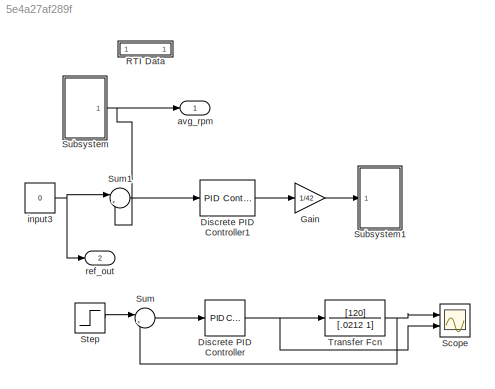
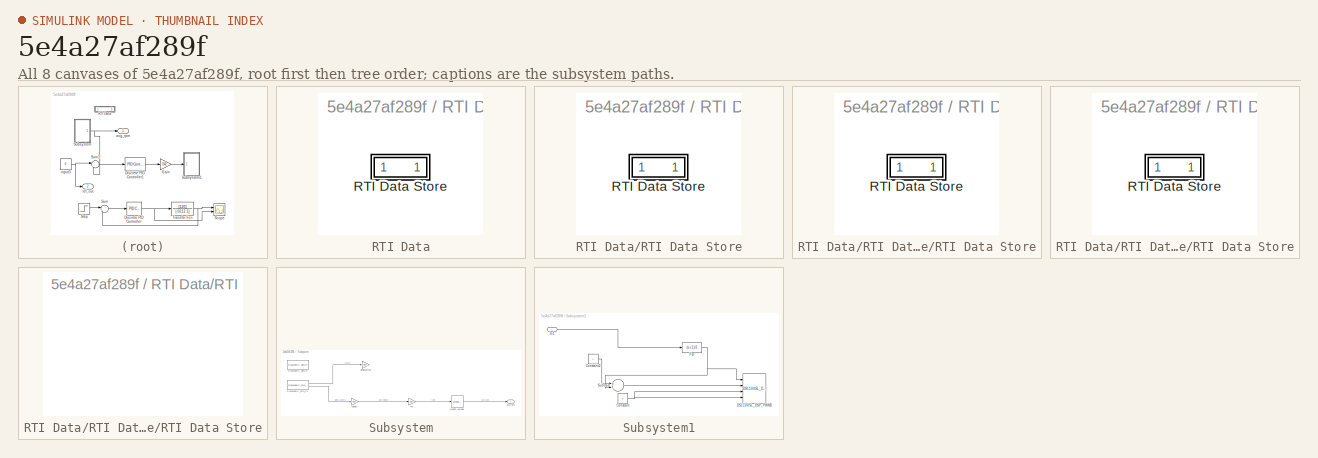
[diagram: thumbnail index - all 8 canvases of the model, root first then tree order]
MODEL slx_5e4a27af289f
KIND model
CONFIG AbsTol = auto
CONFIG EnableMultiTasking = off
CONFIG FixedStep = 0.0001
CONFIG MaxStep = auto
CONFIG MinStep = auto
CONFIG PostLoadFcn = , if any(exist('dsrtsu_mdlpostloadfcn', 'file') == [2, 3, 6]), try dsrtsu_mdlpostloadfcn('Execute', bdroot); catch fprintf('Error in PostLoadFcn (dsrtsu_mdlpostloadfcn) for model "%s":\n %s\n', bdroot, lasterr); end, end, \n
CONFIG RelTol = 1e-3
CONFIG SampleTimeConstraint = Unconstrained
CONFIG Solver = ode1
CONFIG SolverName = ode1
CONFIG StartTime = 0.0
CONFIG StopTime = inf
BLOCK [Reference] Discrete PID Controller  REF=simulink/Continuous/PID Controller
  Commented = on
  Ports = [1, 1]
  SourceBlock = simulink/Continuous/PID Controller
  SourceProductBaseCode = SL
  SourceProductName = Simulink
  SourceType = PID 1dof
BLOCK [Reference] Discrete PID Controller1  REF=simulink/Continuous/PID Controller
  Ports = [1, 1]
  SourceBlock = simulink/Continuous/PID Controller
  SourceProductBaseCode = SL
  SourceProductName = Simulink
  SourceType = PID 1dof
BLOCK [Gain] Gain
  Gain = 1/42
  OutDataTypeStr = Inherit: Inherit via internal rule
  ParamDataTypeStr = Inherit: Inherit via internal rule
  SaturateOnIntegerOverflow = off
BLOCK [SubSystem] RTI Data
  CopyFcn = if exist('rtidc'), try,  rtidc('DataHostBlockClbCopy', gcbh); catch, disp(['Warning: ''CopyFcn'' for RTI Data block failed: ' lasterr]); end, end,
  DeleteFcn = if exist('rtidc'), try,  rtidc('DataHostBlockClbDelete', gcbh); catch, disp(['Warning: ''DeleteFcn'' for RTI Data block failed: ' lasterr]); end, end,
  LoadFcn = if exist('rtidc'), try,  rtidc('DataHostBlockClbLoad', gcbh); catch, disp(['Warning: ''LoadFcn'' for RTI Data block failed: ' lasterr]); end, end,
  ModelCloseFcn = if exist('rtidc'), try,  rtidc('DataHostBlockClbModelClose', gcbh); catch, disp(['Warning: ''ModelCloseFcn'' for RTI Data block failed: ' lasterr]); end, end,
  NameChangeFcn = if exist('rtidc'), try,  rtidc('DataHostBlockClbNameChange', gcbh); catch, disp(['Warning: ''NameChangeFcn'' for RTI Data block failed: ' lasterr]); end, end,
  Ports = []
  PostSaveFcn = if exist('rtidc'), try,  rtidc('DataHostBlockClbPostSave', gcbh); catch, disp(['Warning: ''PostSaveFcn'' for RTI Data block failed: ' lasterr]); end, end,
  PreSaveFcn = if exist('rtidc'), try,  rtidc('DataHostBlockClbPreSave', gcbh); catch, disp(['Warning: ''PreSaveFcn'' for RTI Data block failed: ' lasterr]); end, end,
  RequestExecContextInheritance = off
  Tag = struct('RTIDataServer',struct('RTIDataServerVs','2','RTIModelDescription','struct(''main'',''Lab7'',''sub'','''',''isMp'',0)'))
  Variant = off
BLOCK [SubSystem] RTI Data/RTI Data Store
  Ports = []
  RequestExecContextInheritance = off
  Tag = struct('private',struct('version',struct('dsVer',uint32(2),'dsVerCreation',uint32(2),'RTI',struct('ver','7.9','type','RTI1104')),'access',struct('type','Model','isPerm',1,'created',['07-Feb-2020 11:31:17'],'modified',['13-Mar-2020 12:43:50'],'location','')),'public',struct('main',struct('data',[]),'sub',struct('name',{{'Lab7'}},'data',{{struct('TH',struct('thTaskInfo',struct('taskType',{'TIMER','H...<+885ch>
  Variant = off
BLOCK [SubSystem] RTI Data/RTI Data Store/RTI Data Store
  Ports = []
  RequestExecContextInheritance = off
  Variant = off
BLOCK [SubSystem] RTI Data/RTI Data Store/RTI Data Store/RTI Data Store
  Ports = []
  RequestExecContextInheritance = off
  Variant = off
BLOCK [SubSystem] RTI Data/RTI Data Store/RTI Data Store/RTI Data Store/RTI Data Store
  Ports = []
  RequestExecContextInheritance = off
  Variant = off
BLOCK [Scope] Scope
  Commented = on
  NumInputPorts = 2
  Ports = [2]
  ScopeSpecificationString = Simulink.scopes.TimeScopeBlockCfg('CurrentConfiguration', extmgr.ConfigurationSet(extmgr.Configuration('Core','General UI',true),extmgr.Configuration('Core','Source UI',true),extmgr.Configuration('Sources','WiredSimulink',true),extmgr.Configuration('Visuals','Time Domain',true,'SerializedDisplays',{struct('MinYLimReal','-1.25175','MaxYLimReal','11.26579','YLabelReal','','MinYLimMag','0.00000','Max...<+1388ch>
BLOCK [Step] Step
  After = 10
  Commented = on
  SampleTime = 0
  Time = 0
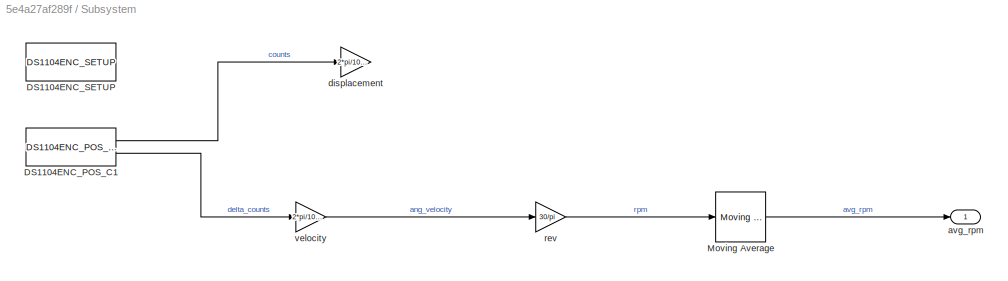
BLOCK [SubSystem] Subsystem
  Ports = [0, 1]
  RequestExecContextInheritance = off
  Variant = off
BLOCK [Reference] Subsystem/DS1104ENC_POS_C1  REF=rtilib1104/DS1104 MASTER PPC/DS1104ENC_POS_C1
  Ports = [0, 2]
  SourceBlock = rtilib1104/DS1104 MASTER PPC/DS1104ENC_POS_C1
  SourceProductName = dSPACE RTI1104
  SourceType = RTI
BLOCK [Reference] Subsystem/DS1104ENC_SETUP  REF=rtilib1104/DS1104 MASTER PPC/DS1104ENC_SETUP
  Ports = []
  SourceBlock = rtilib1104/DS1104 MASTER PPC/DS1104ENC_SETUP
  SourceProductName = dSPACE RTI1104
  SourceType = RTI
BLOCK [Reference] Subsystem/Moving Average  REF=dspstat3/Moving
Average
  Ports = [1, 1]
  SourceBlock = dspstat3/Moving\nAverage
  SourceProductBaseCode = DS
  SourceProductName = DSP System Toolbox
  SourceType = dsp.MovingAverage
BLOCK [Outport] Subsystem/avg_rpm
  IconDisplay = Port number
BLOCK [Gain] Subsystem/displacement
  Gain = 2*pi/1000
  OutDataTypeStr = Inherit: Inherit via internal rule
  ParamDataTypeStr = Inherit: Inherit via internal rule
  SaturateOnIntegerOverflow = off
BLOCK [Gain] Subsystem/rev
  Gain = 30/pi
  OutDataTypeStr = Inherit: Inherit via internal rule
  ParamDataTypeStr = Inherit: Inherit via internal rule
  SaturateOnIntegerOverflow = off
BLOCK [Gain] Subsystem/velocity
  Gain = 2*pi/1000 *(1/0.0001)
  OutDataTypeStr = Inherit: Inherit via internal rule
  ParamDataTypeStr = Inherit: Inherit via internal rule
  SaturateOnIntegerOverflow = off
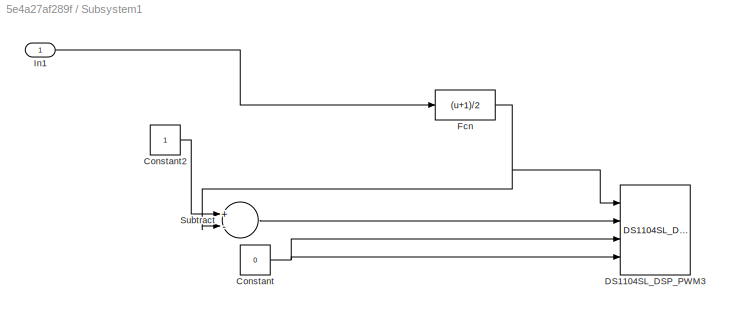
BLOCK [SubSystem] Subsystem1
  Ports = [1]
  RequestExecContextInheritance = off
  Variant = off
BLOCK [Constant] Subsystem1/Constant
  Value = 0
BLOCK [Constant] Subsystem1/Constant2
BLOCK [Reference] Subsystem1/DS1104SL_DSP_PWM3  REF=rtilib1104/DS1104 SLAVE DSP/DS1104SL_DSP_PWM3
  Ports = [4]
  SourceBlock = rtilib1104/DS1104 SLAVE DSP/DS1104SL_DSP_PWM3
  SourceProductName = dSPACE RTI1104
  SourceType = RTI
BLOCK [Fcn] Subsystem1/Fcn
  Expr = (u+1)/2
BLOCK [Inport] Subsystem1/In1
  IconDisplay = Port number
BLOCK [Sum] Subsystem1/Subtract
  InputSameDT = off
  Inputs = +-
  OutDataTypeStr = Inherit: Inherit via internal rule
  Ports = [2, 1]
  SaturateOnIntegerOverflow = off
BLOCK [Sum] Sum
  Commented = on
  IconShape = round
  InputSameDT = off
  Inputs = |+-
  OutDataTypeStr = Inherit: Inherit via internal rule
  Ports = [2, 1]
  SaturateOnIntegerOverflow = off
BLOCK [Sum] Sum1
  IconShape = round
  InputSameDT = off
  Inputs = |+-
  OutDataTypeStr = Inherit: Inherit via internal rule
  Ports = [2, 1]
  SaturateOnIntegerOverflow = off
BLOCK [TransferFcn] Transfer Fcn
  Commented = on
  Denominator = [.0212 1]
  Numerator = [120]
BLOCK [Outport] avg_rpm 
  IconDisplay = Port number
BLOCK [Constant] input3
  Value = 0
BLOCK [Outport] ref_out
  IconDisplay = Port number
  Port = 2
LINE Discrete PID Controller1:1 -> Gain:1
NET Discrete PID Controller:1 -> Scope:2, Transfer Fcn:1
LINE Gain:1 -> Subsystem1:1
LINE Step:1 -> Sum:1
LINE Subsystem/DS1104ENC_POS_C1:1 -> Subsystem/displacement:1
LINE Subsystem/DS1104ENC_POS_C1:2 -> Subsystem/velocity:1
LINE Subsystem/Moving Average:1 -> Subsystem/avg_rpm:1
LINE Subsystem/rev:1 -> Subsystem/Moving Average:1
LINE Subsystem/velocity:1 -> Subsystem/rev:1
LINE Subsystem1/Constant2:1 -> Subsystem1/Subtract:1
NET Subsystem1/Constant:1 -> Subsystem1/DS1104SL_DSP_PWM3:3, Subsystem1/DS1104SL_DSP_PWM3:4
NET Subsystem1/Fcn:1 -> Subsystem1/DS1104SL_DSP_PWM3:1, Subsystem1/Subtract:2
LINE Subsystem1/In1:1 -> Subsystem1/Fcn:1
LINE Subsystem1/Subtract:1 -> Subsystem1/DS1104SL_DSP_PWM3:2
NET Subsystem:1 -> Sum1:2, avg_rpm :1
LINE Sum1:1 -> Discrete PID Controller1:1
LINE Sum:1 -> Discrete PID Controller:1
NET Transfer Fcn:1 -> Scope:1, Sum:2
NET input3:1 -> Sum1:1, ref_out:1
note: NET lines group one-source signal fan-out (src -> all destinations, sorted); 1:1 wires keep LINE
